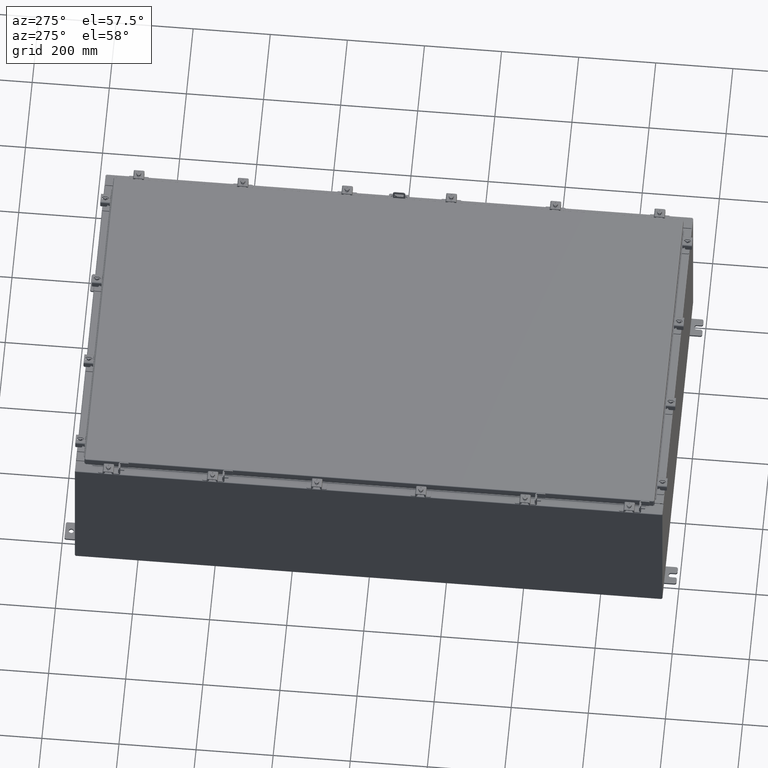
[diagram: clean part render]
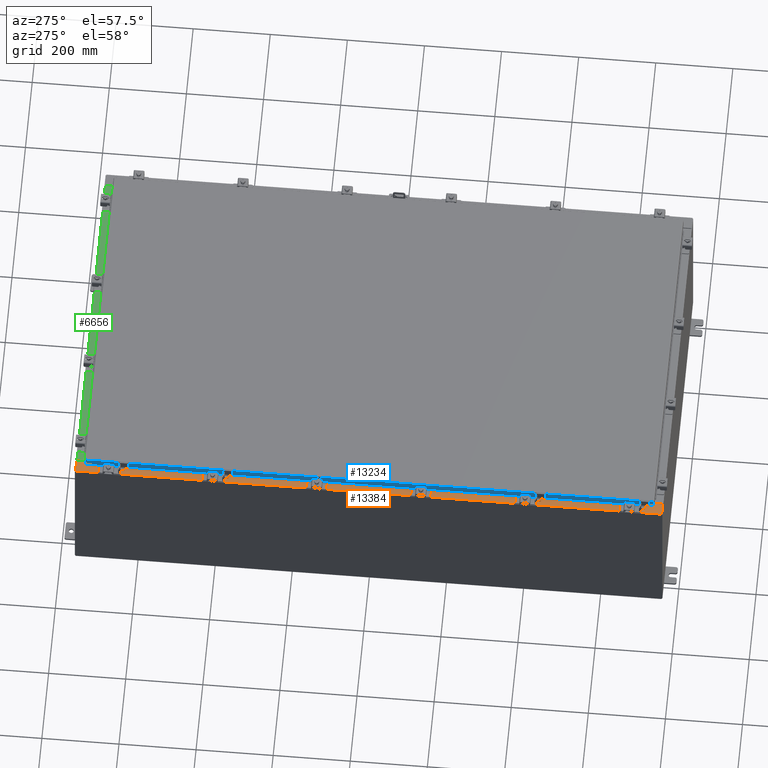
[diagram: same view with three faces highlighted in distinct colors, each labeled with its STEP entity id]
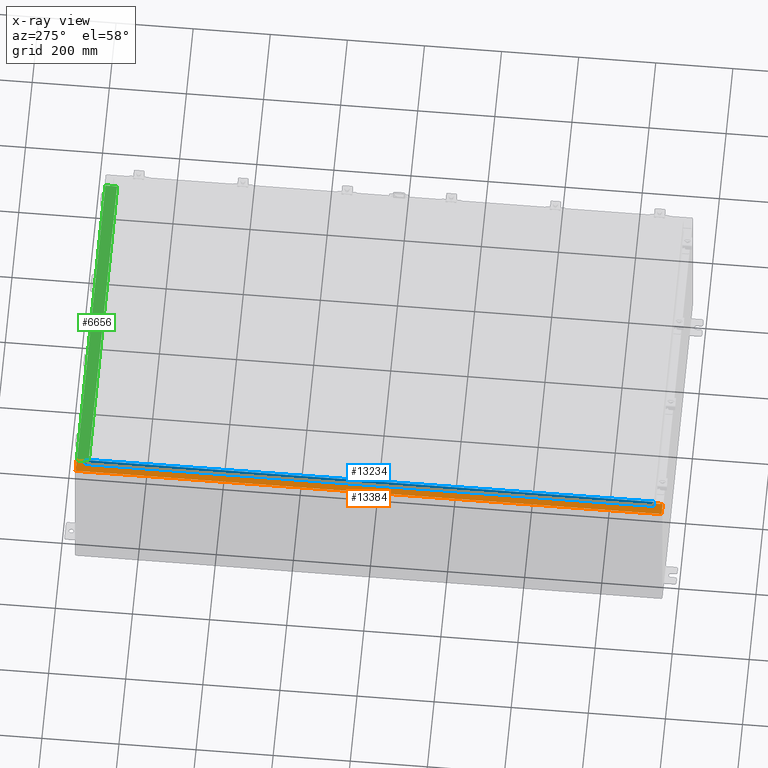
[diagram: x-ray of the same camera — body ghosted, the three highlighted faces saturated]
A machine part, auxiliary view with three faces highlighted in distinct colors.
The next image is the same camera in x-ray (body ghosted, the three faces saturated) — at least one of them is partly hidden behind the body in this view.
Their STEP definitions:

[orange] entity #13384 — the highlighted planar face has unit normal (0, 0, -1).
#14 = VERTEX_POINT ( 'NONE', #4647 ) ;
#254 = DIRECTION ( 'NONE',  ( 1.000000000000000000, 0.0000000000000000000, 0.0000000000000000000 ) ) ;
#532 = CARTESIAN_POINT ( 'NONE',  ( -16.71270000000005900, -28.59374999999999300, 15.92530000000000500 ) ) ;
#540 = LINE ( 'NONE', #4015, #22509 ) ;
#1492 = CARTESIAN_POINT ( 'NONE',  ( -17.91230000000005500, 29.92529999999998900, 15.92530000000000000 ) ) ;
#1643 = LINE ( 'NONE', #4264, #17976 ) ;
#2141 = CARTESIAN_POINT ( 'NONE',  ( -16.69970000000005700, -5.815213060988729800E-016, 15.92530000000000500 ) ) ;
#2193 = ORIENTED_EDGE ( 'NONE', *, *, #3473, .F. ) ;
#2357 = VECTOR ( 'NONE', #10087, 39.37007874015748100 ) ;
#3206 = DIRECTION ( 'NONE',  ( 7.132762385546384700E-015, 3.651556366905946600E-017, -1.000000000000000000 ) ) ;
#3473 = EDGE_CURVE ( 'NONE', #14, #7842, #1643, .T. ) ;
#4015 = CARTESIAN_POINT ( 'NONE',  ( -16.71270000000005900, 28.59374999999998200, 15.92530000000000500 ) ) ;
#4264 = CARTESIAN_POINT ( 'NONE',  ( -16.75005000000005900, -28.63109999999998900, 15.92530000000000500 ) ) ;
#4647 = CARTESIAN_POINT ( 'NONE',  ( -16.75005000000005900, -28.63109999999998900, 15.92530000000000500 ) ) ;
#4704 = EDGE_CURVE ( 'NONE', #14276, #7842, #16590, .T. ) ;
#4723 = ORIENTED_EDGE ( 'NONE', *, *, #14916, .F. ) ;
#4885 = VERTEX_POINT ( 'NONE', #11214 ) ;
#5232 = LINE ( 'NONE', #26516, #5894 ) ;
#5602 = ORIENTED_EDGE ( 'NONE', *, *, #8178, .T. ) ;
#5678 = ORIENTED_EDGE ( 'NONE', *, *, #12265, .T. ) ;
#5894 = VECTOR ( 'NONE', #13794, 39.37007874015748100 ) ;
#5992 = CARTESIAN_POINT ( 'NONE',  ( -16.75005000000005900, 28.63109999999998900, 15.92530000000000900 ) ) ;
#6171 = DIRECTION ( 'NONE',  ( -0.0000000000000000000, -1.000000000000000000, -0.0000000000000000000 ) ) ;
#6423 = DIRECTION ( 'NONE',  ( 1.000000000000000000, 0.0000000000000000000, 0.0000000000000000000 ) ) ;
#6431 = CARTESIAN_POINT ( 'NONE',  ( -16.75005000000005900, 28.59374999999999300, 15.92530000000000500 ) ) ;
#6440 = VECTOR ( 'NONE', #8364, 39.37007874015748100 ) ;
#6791 = VERTEX_POINT ( 'NONE', #6431 ) ;
#7366 = EDGE_CURVE ( 'NONE', #18361, #14276, #27071, .T. ) ;
#7709 = CARTESIAN_POINT ( 'NONE',  ( -16.75005000000005900, 28.59374999999999300, 15.92530000000000500 ) ) ;
#7764 = DIRECTION ( 'NONE',  ( -1.000000000000000000, 0.0000000000000000000, 0.0000000000000000000 ) ) ;
#7842 = VERTEX_POINT ( 'NONE', #8044 ) ;
#8044 = CARTESIAN_POINT ( 'NONE',  ( -16.69970000000005700, -28.63109999999999600, 15.92530000000000500 ) ) ;
#8178 = EDGE_CURVE ( 'NONE', #10386, #24623, #27348, .T. ) ;
#8364 = DIRECTION ( 'NONE',  ( 1.000000000000000000, -3.566381192773192400E-015, 7.132762385546384700E-015 ) ) ;
#8603 = EDGE_CURVE ( 'NONE', #18361, #24623, #8728, .T. ) ;
#8728 = LINE ( 'NONE', #1492, #2357 ) ;
#9151 = VERTEX_POINT ( 'NONE', #18216 ) ;
#9338 = CARTESIAN_POINT ( 'NONE',  ( -16.75005000000005900, 28.61242499999999100, 15.92530000000000500 ) ) ;
#10087 = DIRECTION ( 'NONE',  ( -0.0000000000000000000, 1.000000000000000000, 3.651556366905946600E-017 ) ) ;
#10239 = VECTOR ( 'NONE', #7764, 39.37007874015748100 ) ;
#10274 = CARTESIAN_POINT ( 'NONE',  ( -16.69970000000005700, -29.92530000000001800, 15.92530000000000400 ) ) ;
#10386 = VERTEX_POINT ( 'NONE', #14149 ) ;
#10748 = ORIENTED_EDGE ( 'NONE', *, *, #8603, .F. ) ;
#11163 = VERTEX_POINT ( 'NONE', #5992 ) ;
#11214 = CARTESIAN_POINT ( 'NONE',  ( -16.69970000000005700, 28.63109999999998900, 15.92530000000000500 ) ) ;
#11470 = DIRECTION ( 'NONE',  ( 1.000000000000000000, 0.0000000000000000000, 0.0000000000000000000 ) ) ;
#12190 = EDGE_CURVE ( 'NONE', #11163, #6791, #23540, .T. ) ;
#12265 = EDGE_CURVE ( 'NONE', #4885, #10386, #5232, .T. ) ;
#12651 = AXIS2_PLACEMENT_3D ( 'NONE', #22293, #3206, #18105 ) ;
#12858 = ORIENTED_EDGE ( 'NONE', *, *, #7366, .T. ) ;
#13039 = DIRECTION ( 'NONE',  ( -7.132762385546384700E-015, -3.651556366905946600E-017, 1.000000000000000000 ) ) ;
#13279 = ORIENTED_EDGE ( 'NONE', *, *, #27039, .F. ) ;
#13280 = DIRECTION ( 'NONE',  ( -1.000000000000000000, -4.379057701015053300E-047, -7.132762385546384700E-015 ) ) ;
#13356 = CIRCLE ( 'NONE', #20046, 0.01867499999999949400 ) ;
#13384 = ADVANCED_FACE ( 'NONE', ( #14211 ), #15978, .F. ) ;
#13794 = DIRECTION ( 'NONE',  ( 0.0000000000000000000, 1.000000000000000000, 3.651556366905946600E-017 ) ) ;
#14149 = CARTESIAN_POINT ( 'NONE',  ( -16.69970000000005700, 29.92529999999998900, 15.92530000000000500 ) ) ;
#14211 = FACE_OUTER_BOUND ( 'NONE', #16936, .T. ) ;
#14276 = VERTEX_POINT ( 'NONE', #10274 ) ;
#14423 = DIRECTION ( 'NONE',  ( -1.000000000000000000, 0.0000000000000000000, 0.0000000000000000000 ) ) ;
#14454 = ORIENTED_EDGE ( 'NONE', *, *, #17281, .F. ) ;
#14834 = EDGE_CURVE ( 'NONE', #6791, #9151, #16771, .T. ) ;
#14916 = EDGE_CURVE ( 'NONE', #4885, #11163, #24944, .T. ) ;
#14924 = DIRECTION ( 'NONE',  ( 0.0000000000000000000, 1.000000000000000000, 3.651556366905946600E-017 ) ) ;
#15232 = LINE ( 'NONE', #20505, #10239 ) ;
#15978 = PLANE ( 'NONE',  #12651 ) ;
#16277 = DIRECTION ( 'NONE',  ( 1.000000000000000000, 0.0000000000000000000, 0.0000000000000000000 ) ) ;
#16444 = CARTESIAN_POINT ( 'NONE',  ( -17.91230000000005500, -29.92530000000001100, 15.92529999999999800 ) ) ;
#16590 = LINE ( 'NONE', #2141, #21597 ) ;
#16771 = LINE ( 'NONE', #7709, #27422 ) ;
#16936 = EDGE_LOOP ( 'NONE', ( #4723, #5678, #5602, #10748, #12858, #17961, #2193, #13279, #14454, #22223, #22791, #22233 ) ) ;
#17281 = EDGE_CURVE ( 'NONE', #21519, #25809, #15232, .T. ) ;
#17481 = EDGE_CURVE ( 'NONE', #9151, #21519, #540, .T. ) ;
#17599 = AXIS2_PLACEMENT_3D ( 'NONE', #9338, #24183, #11470 ) ;
#17961 = ORIENTED_EDGE ( 'NONE', *, *, #4704, .T. ) ;
#17976 = VECTOR ( 'NONE', #6423, 39.37007874015748100 ) ;
#18105 = DIRECTION ( 'NONE',  ( -1.000000000000000000, 0.0000000000000000000, -7.132762385546384700E-015 ) ) ;
#18216 = CARTESIAN_POINT ( 'NONE',  ( -16.71270000000005900, 28.59374999999999300, 15.92530000000000500 ) ) ;
#18361 = VERTEX_POINT ( 'NONE', #16444 ) ;
#18678 = CARTESIAN_POINT ( 'NONE',  ( -16.69970000000005700, 28.63109999999998900, 15.92530000000000500 ) ) ;
#19314 = VECTOR ( 'NONE', #14423, 39.37007874015748100 ) ;
#20046 = AXIS2_PLACEMENT_3D ( 'NONE', #25751, #13039, #254 ) ;
#20505 = CARTESIAN_POINT ( 'NONE',  ( -16.71270000000005900, -28.59374999999999300, 15.92530000000000500 ) ) ;
#21104 = CARTESIAN_POINT ( 'NONE',  ( -2.205772215826502400E-013, -29.92530000000007800, 15.92530000000012400 ) ) ;
#21519 = VERTEX_POINT ( 'NONE', #532 ) ;
#21597 = VECTOR ( 'NONE', #14924, 39.37007874015748100 ) ;
#22223 = ORIENTED_EDGE ( 'NONE', *, *, #17481, .F. ) ;
#22233 = ORIENTED_EDGE ( 'NONE', *, *, #12190, .F. ) ;
#22293 = CARTESIAN_POINT ( 'NONE',  ( -1.138521944745543500E-013, -5.815213060988774200E-016, 15.92530000000012600 ) ) ;
#22509 = VECTOR ( 'NONE', #6171, 39.37007874015748100 ) ;
#22791 = ORIENTED_EDGE ( 'NONE', *, *, #14834, .F. ) ;
#23540 = CIRCLE ( 'NONE', #17599, 0.01867499999999949400 ) ;
#24183 = DIRECTION ( 'NONE',  ( -7.132762385546384700E-015, -3.651556366905946600E-017, 1.000000000000000000 ) ) ;
#24623 = VERTEX_POINT ( 'NONE', #26642 ) ;
#24944 = LINE ( 'NONE', #18678, #19314 ) ;
#25751 = CARTESIAN_POINT ( 'NONE',  ( -16.75005000000005900, -28.61242499999999100, 15.92530000000000500 ) ) ;
#25809 = VERTEX_POINT ( 'NONE', #27382 ) ;
#25990 = CARTESIAN_POINT ( 'NONE',  ( -1.138521944745543500E-013, 29.92529999999998900, 15.92530000000012600 ) ) ;
#26516 = CARTESIAN_POINT ( 'NONE',  ( -16.69970000000005700, -5.815213060988729800E-016, 15.92530000000000500 ) ) ;
#26642 = CARTESIAN_POINT ( 'NONE',  ( -17.91230000000005500, 29.92529999999998900, 15.92530000000000000 ) ) ;
#26694 = VECTOR ( 'NONE', #13280, 39.37007874015748100 ) ;
#27039 = EDGE_CURVE ( 'NONE', #25809, #14, #13356, .T. ) ;
#27071 = LINE ( 'NONE', #21104, #6440 ) ;
#27348 = LINE ( 'NONE', #25990, #26694 ) ;
#27382 = CARTESIAN_POINT ( 'NONE',  ( -16.75005000000005900, -28.59374999999999300, 15.92530000000000500 ) ) ;
#27422 = VECTOR ( 'NONE', #16277, 39.37007874015748100 ) ;

[blue] entity #13234 — the highlighted planar face has unit normal (1, 0, -0).
#11 = ORIENTED_EDGE ( 'NONE', *, *, #14193, .F. ) ;
#530 = PLANE ( 'NONE',  #24552 ) ;
#1381 = VERTEX_POINT ( 'NONE', #5399 ) ;
#1456 = CARTESIAN_POINT ( 'NONE',  ( -17.07799999999999900, -29.00515786437626500, -0.8499999999999996400 ) ) ;
#2655 = DIRECTION ( 'NONE',  ( 1.000000000000000000, 3.374737631835138300E-031, -2.818880942772360100E-015 ) ) ;
#3091 = DIRECTION ( 'NONE',  ( 4.379057701015054300E-047, 1.000000000000000000, 1.197190551977018000E-016 ) ) ;
#3223 = LINE ( 'NONE', #11934, #8245 ) ;
#3633 = CARTESIAN_POINT ( 'NONE',  ( -17.07799999999999900, -29.09400000000000500, -0.8499999999999996400 ) ) ;
#4776 = LINE ( 'NONE', #15868, #16761 ) ;
#4803 = ORIENTED_EDGE ( 'NONE', *, *, #21720, .F. ) ;
#5399 = CARTESIAN_POINT ( 'NONE',  ( -17.07799999999999600, -29.00515786437627600, -0.08770000000000007000 ) ) ;
#5505 = VECTOR ( 'NONE', #13243, 39.37007874015748100 ) ;
#5813 = DIRECTION ( 'NONE',  ( -2.818880942772360100E-015, 6.982962677686265900E-015, -1.000000000000000000 ) ) ;
#7968 = CARTESIAN_POINT ( 'NONE',  ( -17.07799999999999600, 29.00515786437626500, 2.509435972240157400E-013 ) ) ;
#8245 = VECTOR ( 'NONE', #14055, 39.37007874015748100 ) ;
#8654 = VECTOR ( 'NONE', #5813, 39.37007874015748100 ) ;
#9725 = VECTOR ( 'NONE', #13854, 39.37007874015748100 ) ;
#11934 = CARTESIAN_POINT ( 'NONE',  ( -17.07799999999998500, -28.25515786437626500, -0.8500000000000017500 ) ) ;
#12394 = EDGE_CURVE ( 'NONE', #20338, #25060, #3223, .T. ) ;
#12444 = CARTESIAN_POINT ( 'NONE',  ( -17.07799999999998500, 28.25515786437626500, -0.8500000000000017500 ) ) ;
#12502 = LINE ( 'NONE', #3633, #16801 ) ;
#13234 = ADVANCED_FACE ( 'NONE', ( #16205 ), #530, .F. ) ;
#13243 = DIRECTION ( 'NONE',  ( -2.818880942772360100E-015, 6.982962677686265900E-015, -1.000000000000000000 ) ) ;
#13854 = DIRECTION ( 'NONE',  ( 3.374737631835139200E-031, -1.000000000000000000, -9.198750492177080800E-046 ) ) ;
#14055 = DIRECTION ( 'NONE',  ( -0.0000000000000000000, 1.000000000000000000, -0.0000000000000000000 ) ) ;
#14187 = DIRECTION ( 'NONE',  ( 4.379057701015054300E-047, 1.000000000000000000, 1.197190551977018000E-016 ) ) ;
#14193 = EDGE_CURVE ( 'NONE', #25060, #27381, #12502, .T. ) ;
#14878 = VERTEX_POINT ( 'NONE', #1456 ) ;
#15417 = EDGE_CURVE ( 'NONE', #16600, #27381, #20619, .T. ) ;
#15868 = CARTESIAN_POINT ( 'NONE',  ( -17.07799999999999900, -29.09400000000000500, -0.8499999999999996400 ) ) ;
#16205 = FACE_OUTER_BOUND ( 'NONE', #27207, .T. ) ;
#16600 = VERTEX_POINT ( 'NONE', #24253 ) ;
#16761 = VECTOR ( 'NONE', #3091, 39.37007874015748100 ) ;
#16801 = VECTOR ( 'NONE', #14187, 39.37007874015748100 ) ;
#16836 = LINE ( 'NONE', #25952, #5505 ) ;
#17100 = ORIENTED_EDGE ( 'NONE', *, *, #15417, .T. ) ;
#17570 = DIRECTION ( 'NONE',  ( -2.818880942772360100E-015, 0.0000000000000000000, -1.000000000000000000 ) ) ;
#18030 = ORIENTED_EDGE ( 'NONE', *, *, #18032, .F. ) ;
#18032 = EDGE_CURVE ( 'NONE', #1381, #14878, #16836, .T. ) ;
#20330 = CARTESIAN_POINT ( 'NONE',  ( -17.07799999999999900, 29.00515786437627200, -0.8499999999999927600 ) ) ;
#20338 = VERTEX_POINT ( 'NONE', #20403 ) ;
#20349 = LINE ( 'NONE', #24521, #9725 ) ;
#20403 = CARTESIAN_POINT ( 'NONE',  ( -17.07799999999998500, -28.25515786437626500, -0.8500000000000017500 ) ) ;
#20619 = LINE ( 'NONE', #7968, #8654 ) ;
#21720 = EDGE_CURVE ( 'NONE', #16600, #1381, #20349, .T. ) ;
#22122 = ORIENTED_EDGE ( 'NONE', *, *, #12394, .F. ) ;
#23146 = ORIENTED_EDGE ( 'NONE', *, *, #24548, .F. ) ;
#23882 = CARTESIAN_POINT ( 'NONE',  ( -17.07799999999999600, -5.763376927648048400E-030, 4.840166239667793400E-014 ) ) ;
#24253 = CARTESIAN_POINT ( 'NONE',  ( -17.07799999999999600, 29.00515786437626500, -0.08770000000000007000 ) ) ;
#24521 = CARTESIAN_POINT ( 'NONE',  ( -17.07799999999999600, -29.09400000000000500, -0.08770000000000007000 ) ) ;
#24548 = EDGE_CURVE ( 'NONE', #14878, #20338, #4776, .T. ) ;
#24552 = AXIS2_PLACEMENT_3D ( 'NONE', #23882, #2655, #17570 ) ;
#25060 = VERTEX_POINT ( 'NONE', #12444 ) ;
#25952 = CARTESIAN_POINT ( 'NONE',  ( -17.07799999999999600, -29.00515786437627200, -0.07469999999999978000 ) ) ;
#27207 = EDGE_LOOP ( 'NONE', ( #4803, #17100, #11, #22122, #23146, #18030 ) ) ;
#27381 = VERTEX_POINT ( 'NONE', #20330 ) ;

[green] entity #6656 — the highlighted planar face has unit normal (0, 0, 1).
#178 = VECTOR ( 'NONE', #23720, 39.37007874015748100 ) ;
#1878 = VERTEX_POINT ( 'NONE', #4820 ) ;
#3255 = EDGE_LOOP ( 'NONE', ( #11910, #18729, #18206, #10157 ) ) ;
#3482 = CARTESIAN_POINT ( 'NONE',  ( -16.63720000000000000, -1.287299999999999400, 8.000000000000007100 ) ) ;
#3751 = CARTESIAN_POINT ( 'NONE',  ( 5.308514113925181600E-016, -0.08770000000000136000, 8.000000000000001800 ) ) ;
#3836 = VECTOR ( 'NONE', #14393, 39.37007874015748100 ) ;
#4517 = LINE ( 'NONE', #3751, #3836 ) ;
#4591 = DIRECTION ( 'NONE',  ( -0.0000000000000000000, -1.000000000000000000, 3.566381192773190000E-015 ) ) ;
#4820 = CARTESIAN_POINT ( 'NONE',  ( 16.63720000000000000, -1.287300000000000300, 8.000000000000003600 ) ) ;
#5242 = LINE ( 'NONE', #19497, #21574 ) ;
#5451 = LINE ( 'NONE', #9875, #11810 ) ;
#6088 = EDGE_CURVE ( 'NONE', #19692, #1878, #5242, .T. ) ;
#6656 = ADVANCED_FACE ( 'NONE', ( #11582 ), #23053, .T. ) ;
#7552 = CARTESIAN_POINT ( 'NONE',  ( -16.63720000000000000, -0.08770000000000136000, 8.000000000000001800 ) ) ;
#9762 = CARTESIAN_POINT ( 'NONE',  ( 16.63720000000000400, -0.08770000000000102700, 8.000000000000000000 ) ) ;
#9875 = CARTESIAN_POINT ( 'NONE',  ( 16.63720000000000400, -1.287300000000000300, 8.000000000000003600 ) ) ;
#10157 = ORIENTED_EDGE ( 'NONE', *, *, #13584, .T. ) ;
#10354 = CARTESIAN_POINT ( 'NONE',  ( 5.250912337413644300E-016, 2.852545452309695200E-014, 8.000000000000001800 ) ) ;
#11582 = FACE_OUTER_BOUND ( 'NONE', #3255, .T. ) ;
#11810 = VECTOR ( 'NONE', #24723, 39.37007874015748100 ) ;
#11910 = ORIENTED_EDGE ( 'NONE', *, *, #23102, .F. ) ;
#12498 = DIRECTION ( 'NONE',  ( 0.0000000000000000000, -1.000000000000000000, 3.566381192773190000E-015 ) ) ;
#13501 = VERTEX_POINT ( 'NONE', #3482 ) ;
#13584 = EDGE_CURVE ( 'NONE', #19692, #20982, #4517, .T. ) ;
#14393 = DIRECTION ( 'NONE',  ( -1.000000000000000000, -6.568047492761434800E-017, 6.568047492761457000E-017 ) ) ;
#14797 = EDGE_CURVE ( 'NONE', #1878, #13501, #5451, .T. ) ;
#17173 = LINE ( 'NONE', #25878, #178 ) ;
#18206 = ORIENTED_EDGE ( 'NONE', *, *, #6088, .F. ) ;
#18265 = AXIS2_PLACEMENT_3D ( 'NONE', #10354, #25208, #12498 ) ;
#18729 = ORIENTED_EDGE ( 'NONE', *, *, #14797, .F. ) ;
#19497 = CARTESIAN_POINT ( 'NONE',  ( 16.63720000000000000, -1.300299999999999800, 8.000000000000003600 ) ) ;
#19692 = VERTEX_POINT ( 'NONE', #9762 ) ;
#20982 = VERTEX_POINT ( 'NONE', #7552 ) ;
#21574 = VECTOR ( 'NONE', #4591, 39.37007874015748100 ) ;
#23053 = PLANE ( 'NONE',  #18265 ) ;
#23102 = EDGE_CURVE ( 'NONE', #13501, #20982, #17173, .T. ) ;
#23720 = DIRECTION ( 'NONE',  ( -0.0000000000000000000, 1.000000000000000000, -3.566381192773190000E-015 ) ) ;
#24723 = DIRECTION ( 'NONE',  ( -1.000000000000000000, 0.0000000000000000000, 0.0000000000000000000 ) ) ;
#25208 = DIRECTION ( 'NONE',  ( 6.568047492761433500E-017, 3.566381192773190000E-015, 1.000000000000000000 ) ) ;
#25878 = CARTESIAN_POINT ( 'NONE',  ( -16.63720000000000000, -0.07469999999999973900, 8.000000000000001800 ) ) ;